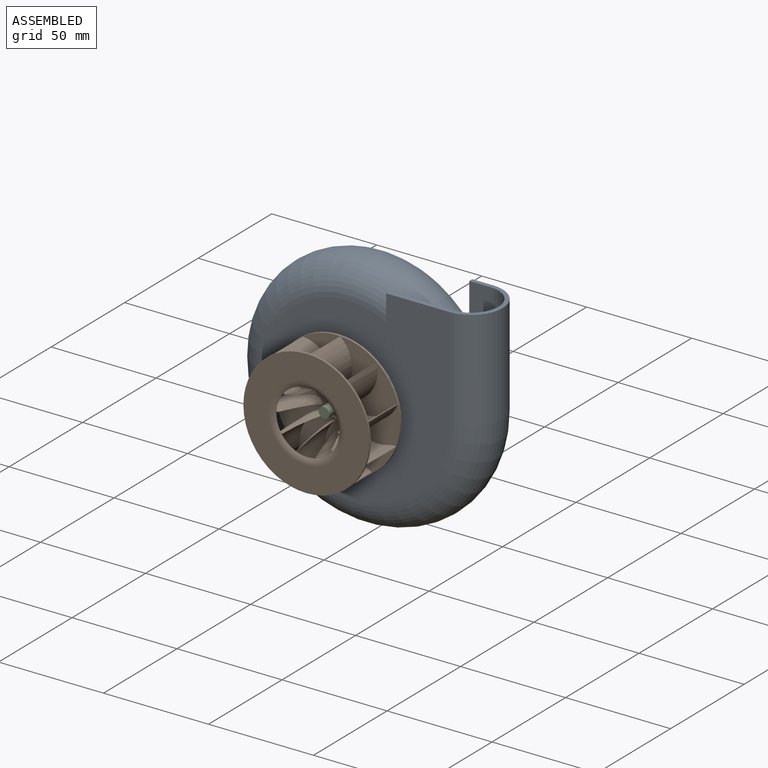
[diagram: assembled view]
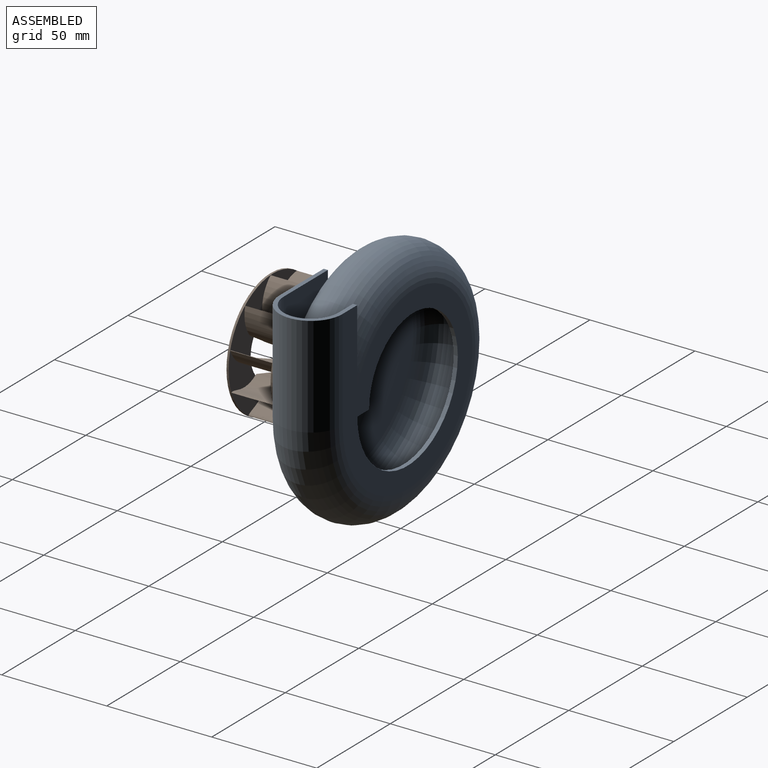
[diagram: assembled view, second angle]
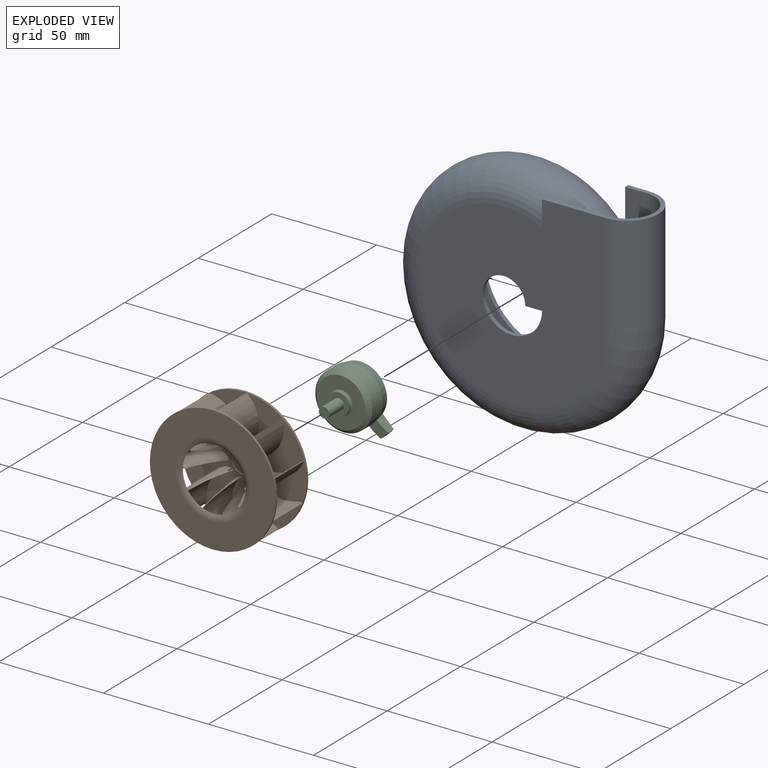
[diagram: exploded view]
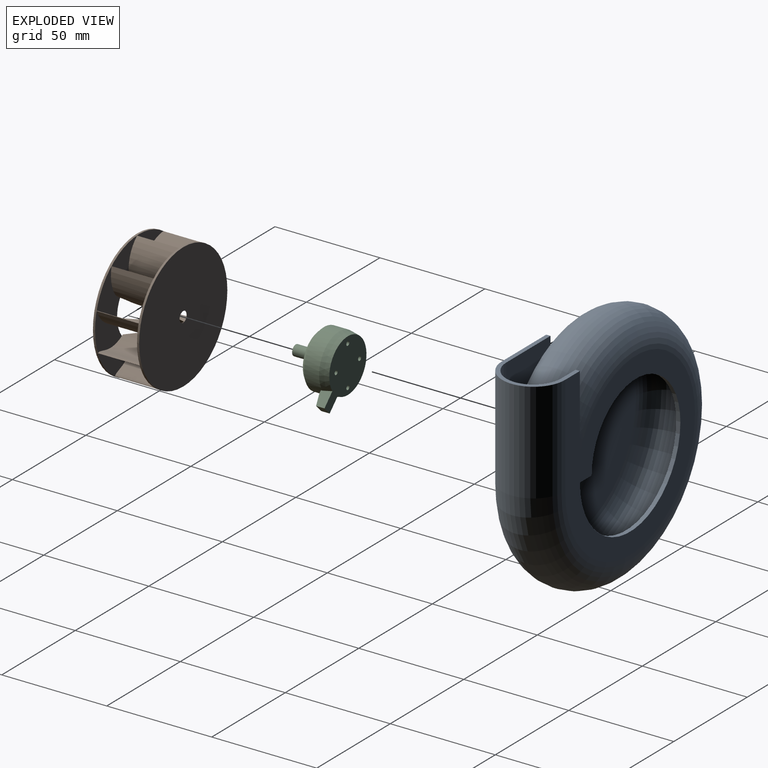
[diagram: exploded view, second angle]
ASSEMBLY  parts=3 mates=2
PART A: 20 faces, bbox 128.1x123.8x30 mm
  f0: plane 8x2mm, normal (0,-1,0), area 16mm2, adj f4,f5,f11,f12
  f1: plane 26x15mm, normal (0,-1,0), area 67.7mm2, adj f5,f6,f7,f10
  f2: plane 8x2mm, normal (0,-1,0), area 16mm2, adj f7,f8,f9,f14
  f3: plane 45x30mm, normal (0,1,0), area 168mm2, adj f5,f7,f9,f11,f16,f17,f18,f19
  f4: cylinder r=30.18mm len=60.37mm, axis (0,0,1), area 189.6mm2, adj f0,f5,f11,f12
  f5: plane 92.25x88.37mm, normal (0,0,1), area 2632.6mm2, adj f0,f1,f3,f4,f6,f10,f12,f13
  f6: torus R=40.18mm, axis (0,0,1), area 6217.5mm2, adj f1,f5,f7,f13
  f7: plane 92.25x88.37mm, normal (0,0,-1), area 5626.5mm2, adj f1,f2,f3,f6,f8,f10,f13,f14
  f8: cylinder r=10.18mm len=20.37mm, axis (0,0,1), area 64mm2, adj f2,f7,f9,f14
  f9: plane 92.25x88.37mm, normal (0,0,1), area 6002.5mm2, adj f2,f3,f8,f10,f14,f15,f18,f19
  f10: torus R=40.18mm, axis (0,0,1), area 6790.9mm2, adj f1,f5,f7,f9,f11,f15,f16,f18
  f11: plane 92.25x88.37mm, normal (0,0,-1), area 2800.1mm2, adj f0,f3,f4,f10,f12,f15,f16,f19
  f12: cylinder r=34.18mm len=68.37mm, axis (0,0,1), area 214.8mm2, adj f0,f4,f5,f11
  f13: torus R=44.18mm, axis (0,0,1), area 6730.8mm2, adj f5,f6,f7,f17
  f14: cylinder r=14.18mm len=28.37mm, axis (0,0,1), area 89.1mm2, adj f2,f7,f8,f9
  f15: torus R=44.18mm, axis (0,0,1), area 7954.8mm2, adj f9,f10,f11,f19
  f16: plane 35.55x2.01mm, normal (-1,0,0), area 48mm2, adj f3,f5,f10,f11
  f17: cylinder r=13mm len=48.06mm, axis (0,1,0), area 1963mm2, adj f3,f5,f7,f13
  f18: plane 12.23x2.01mm, normal (-1,0,0), area 13.3mm2, adj f3,f7,f9,f10
  f19: cylinder r=15mm len=48.06mm, axis (0,1,0), area 2265mm2, adj f3,f9,f11,f15
PART B: 60 faces, bbox 70.1x70.6x32.9 mm
  f0: plane 0.71x0.45mm, normal (0,0,1), area 0.2mm2, adj f2,f4,f59
  f1: cylinder r=16mm len=20mm, axis (0,0,1), area 365.5mm2, adj f3,f4,f5,f38
  f2: cylinder r=14.5mm len=20mm, axis (0,0,1), area 317.1mm2, adj f0,f3,f4,f5,f38
  f3: bspline ~22x8.84mm, area 114.7mm2, adj f1,f2,f5,f38
  f4: bspline ~29.96x14.91mm, area 100.4mm2, adj f0,f1,f2,f5,f38
  f5: plane 62.93x62.93mm, normal (0,0,-1), area 1894.6mm2, adj f1,f2,f3,f4,f7,f8,f9,f10
  f6: plane 0.78x0.44mm, normal (0,0,1), area 0.2mm2, adj f8,f10,f59
  f7: cylinder r=16mm len=20mm, axis (0,0,1), area 365.5mm2, adj f5,f9,f10,f38
  f8: cylinder r=14.5mm len=20mm, axis (0,0,1), area 317.1mm2, adj f5,f6,f9,f10,f38
  f9: bspline ~22x7.77mm, area 114.7mm2, adj f5,f7,f8,f38
  f10: bspline ~29.96x15.31mm, area 100.4mm2, adj f5,f6,f7,f8,f38
  f11: plane 0.8x0.45mm, normal (0,0,1), area 0.2mm2, adj f13,f15,f59
  f12: cylinder r=16mm len=20mm, axis (0,0,1), area 365.5mm2, adj f5,f14,f15,f38
  f13: cylinder r=14.5mm len=20mm, axis (0,0,1), area 317.1mm2, adj f5,f11,f14,f15,f38
  f14: bspline ~22x6.87mm, area 114.7mm2, adj f5,f12,f13,f38
  f15: bspline ~29.96x14.22mm, area 100.4mm2, adj f5,f11,f12,f13,f38
  f16: plane 0.8x0.45mm, normal (0,0,1), area 0.2mm2, adj f18,f20,f59
  f17: cylinder r=16mm len=20mm, axis (0,0,1), area 365.5mm2, adj f5,f19,f20,f38
  f18: cylinder r=14.5mm len=20mm, axis (0,0,1), area 317.1mm2, adj f5,f16,f19,f20,f38
  f19: bspline ~22x6.87mm, area 114.7mm2, adj f5,f17,f18,f38
  f20: bspline ~29.96x14.22mm, area 100.4mm2, adj f5,f16,f17,f18,f38
  f21: plane 0.74x0.59mm, normal (0,0,1), area 0.2mm2, adj f23,f25,f59
  f22: cylinder r=16mm len=20.59mm, axis (0,0,1), area 365.5mm2, adj f5,f24,f25,f38
  f23: cylinder r=14.5mm len=20mm, axis (0,0,1), area 317.1mm2, adj f5,f21,f24,f25,f38
  f24: bspline ~22x8.37mm, area 114.7mm2, adj f5,f22,f23,f38
  f25: bspline ~29.96x11.74mm, area 100.4mm2, adj f5,f21,f22,f23,f38
  f26: plane 0.78x0.44mm, normal (0,0,1), area 0.2mm2, adj f28,f30,f59
  f27: cylinder r=16mm len=20mm, axis (0,0,1), area 365.5mm2, adj f5,f29,f30,f38
  f28: cylinder r=14.5mm len=20mm, axis (0,0,1), area 317.1mm2, adj f5,f26,f29,f30,f38
  f29: bspline ~22x7.77mm, area 114.7mm2, adj f5,f27,f28,f38
  f30: bspline ~29.96x15.31mm, area 100.4mm2, adj f5,f26,f27,f28,f38
  f31: plane 0.68x0.61mm, normal (0,0,1), area 0.2mm2, adj f33,f35,f59
  f32: cylinder r=16mm len=20.53mm, axis (0,0,1), area 365.5mm2, adj f5,f34,f35,f38
  f33: cylinder r=14.5mm len=20mm, axis (0,0,1), area 317.1mm2, adj f5,f31,f34,f35,f38
  f34: bspline ~22x9.05mm, area 114.7mm2, adj f5,f32,f33,f38
  f35: bspline ~29.96x13.31mm, area 100.4mm2, adj f5,f31,f32,f33,f38
  f36: cylinder r=30mm len=60mm, axis (0,0,1), area 188.5mm2, adj f37,f38
  f37: plane 60x60mm, normal (0,0,-1), area 2807.8mm2, adj f36,f39
  f38: plane 62.93x62.93mm, normal (0,0,1), area 2362mm2, adj f1,f2,f3,f4,f7,f8,f9,f10
  f39: cylinder r=2.5mm len=5mm, axis (0,0,1), area 3.1mm2, adj f37,f40
  f40: plane 12x12mm, normal (0,0,1), area 93.5mm2, adj f39,f41
  f41: cylinder r=6mm len=12mm, axis (0,0,1), area 30.2mm2, adj f38,f40
  f42: plane 0.71x0.45mm, normal (0,0,1), area 0.2mm2, adj f44,f46,f59
  f43: cylinder r=16mm len=20mm, axis (0,0,1), area 365.5mm2, adj f5,f38,f45,f46
  f44: cylinder r=14.5mm len=20mm, axis (0,0,1), area 317.1mm2, adj f5,f38,f42,f45,f46
  f45: bspline ~22x8.84mm, area 114.7mm2, adj f5,f38,f43,f44
  f46: bspline ~29.96x14.91mm, area 100.4mm2, adj f5,f38,f42,f43,f44
  f47: plane 0.68x0.61mm, normal (0,0,1), area 0.2mm2, adj f49,f51,f59
  f48: cylinder r=16mm len=20.53mm, axis (0,0,1), area 365.5mm2, adj f5,f38,f50,f51
  f49: cylinder r=14.5mm len=20mm, axis (0,0,1), area 317.1mm2, adj f5,f38,f47,f50,f51
  f50: bspline ~22x9.05mm, area 114.7mm2, adj f5,f38,f48,f49
  f51: bspline ~29.96x13.31mm, area 100.4mm2, adj f5,f38,f47,f48,f49
  f52: plane 0.74x0.59mm, normal (0,0,1), area 0.2mm2, adj f54,f56,f59
  f53: cylinder r=16mm len=20.59mm, axis (0,0,1), area 365.5mm2, adj f5,f38,f55,f56
  f54: cylinder r=14.5mm len=20mm, axis (0,0,1), area 317.1mm2, adj f5,f38,f52,f55,f56
  f55: bspline ~22x8.37mm, area 114.7mm2, adj f5,f38,f53,f54
  f56: bspline ~29.96x11.74mm, area 100.4mm2, adj f5,f38,f52,f53,f54
  f57: cylinder r=30mm len=60mm, axis (0,0,-1), area 188.5mm2, adj f5,f58
  f58: plane 60x60mm, normal (0,0,1), area 1809.6mm2, adj f57,f59
  f59: torus R=18mm, axis (0,0,1), area 332.5mm2, adj f0,f5,f6,f11,f16,f21,f26,f31
PART C: 23 faces, bbox 29.5x24.8x29.5 mm
  f0: plane 28.56x28.56mm, normal (0,1,0), area 527.3mm2, adj f1,f10,f11,f12,f15,f17,f19,f21
  f1: cone r=12.65mm half-angle=12deg, axis (0,-1,0), area 334.5mm2, adj f0,f2,f10,f11
  f2: cylinder r=13.55mm len=27.1mm, axis (0,-1,0), area 606.2mm2, adj f1,f3,f10,f11,f13
  f3: cone r=13.55mm half-angle=45deg, axis (0,1,0), area 212.7mm2, adj f2,f4
  f4: plane 23.3x23.3mm, normal (0,-1,0), area 331.4mm2, adj f3,f9
  f5: cylinder r=5mm len=10mm, axis (0,-1,0), area 31.4mm2, adj f6,f9
  f6: plane 10x10mm, normal (0,-1,0), area 58.9mm2, adj f5,f7
  f7: cylinder r=2.5mm len=10mm, axis (0,-1,0), area 157.1mm2, adj f6,f8
  f8: plane 5x5mm, normal (0,-1,0), area 19.6mm2, adj f7
  f9: cone r=5mm half-angle=45deg, axis (0,1,0), area 23.3mm2, adj f4,f5
  f10: plane 5.38x5.38mm, normal (-0.71,0,-0.71), area 32.9mm2, adj f0,f1,f2,f12,f13,f14
  f11: plane 5.38x5.38mm, normal (0.71,0,0.71), area 32.9mm2, adj f0,f1,f2,f12,f13,f14
  f12: plane 4x3.54mm, normal (0.71,0,-0.71), area 20mm2, adj f0,f10,f11,f14
  f13: plane 4.73x4.73mm, normal (0,-1,0), area 7.6mm2, adj f2,f10,f11,f14
  f14: plane 7.07x7.07mm, normal (0.14,-0.98,-0.14), area 25.5mm2, adj f10,f11,f12,f13
  f15: cylinder r=1mm len=5mm, axis (0,1,0), area 31.4mm2, adj f0,f16
  f16: plane 2x2mm, normal (0,1,0), area 3.1mm2, adj f15
  f17: cylinder r=1mm len=5mm, axis (0,1,0), area 31.4mm2, adj f0,f18
  f18: plane 2x2mm, normal (0,1,0), area 3.1mm2, adj f17
  f19: cylinder r=1mm len=5mm, axis (0,1,0), area 31.4mm2, adj f0,f20
  f20: plane 2x2mm, normal (0,1,0), area 3.1mm2, adj f19
  f21: cylinder r=1mm len=5mm, axis (0,1,0), area 31.4mm2, adj f0,f22
  f22: plane 2x2mm, normal (0,1,0), area 3.1mm2, adj f21
PLACE A rot(axis=(1,0,0),90deg) t=(-4.58,82.88,-1.73)mm
PLACE B rot(axis=(1,0,0),90deg) t=(0,9,0)mm
PLACE C at identity
MATE fastened A.f7 <-> C.f0  axis (0,1,0) through (0.81,24.8,-0.81)mm
MATE fastened B.f36 <-> C.f9  axis (0,-1,0) through (0,10,0)mm
